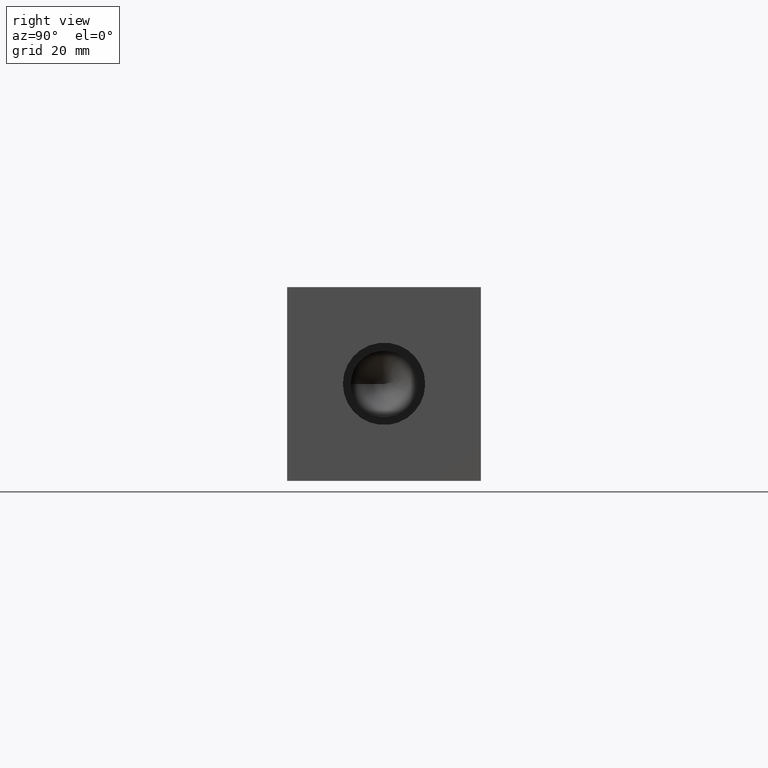
[diagram: clean part render]
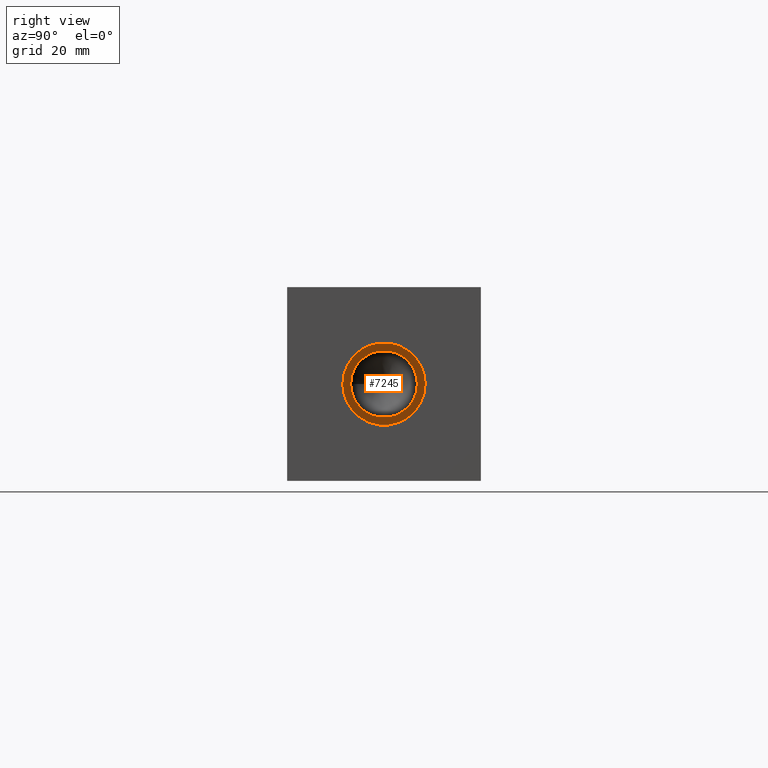
[diagram: same view with one face highlighted and labeled with its STEP entity id]
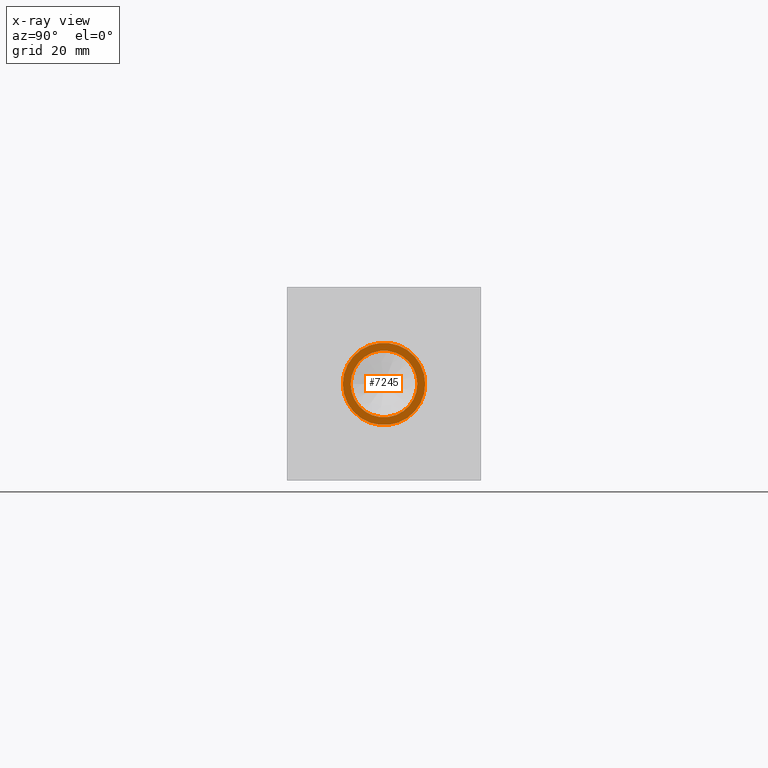
[diagram: x-ray of the same camera — body ghosted, the highlighted face saturated]
A machine part, right view. The second image highlights one B-rep face of the part: STEP entity #7245.
The next image is the same camera in x-ray: the body ghosted, the highlighted face saturated — about 0% of this face is hidden behind the body in this view.
In plain terms, the highlighted planar face has unit normal (1, 0, 0).
Its self-contained STEP definition (entity closure, byte-faithful):
#87=CIRCLE('',#7551,10.795);
#88=CIRCLE('',#7552,10.795);
#89=CIRCLE('',#7553,8.7376);
#489=FACE_BOUND('',#1246,.T.);
#840=FACE_OUTER_BOUND('',#1245,.T.);
#1245=EDGE_LOOP('',(#6196,#6197));
#1246=EDGE_LOOP('',(#6198));
#3327=VERTEX_POINT('',#12319);
#3328=VERTEX_POINT('',#12320);
#3329=VERTEX_POINT('',#12323);
#4300=EDGE_CURVE('',#3327,#3328,#87,.T.);
#4301=EDGE_CURVE('',#3328,#3327,#88,.T.);
#4302=EDGE_CURVE('',#3329,#3329,#89,.T.);
#6196=ORIENTED_EDGE('',*,*,#4300,.T.);
#6197=ORIENTED_EDGE('',*,*,#4301,.T.);
#6198=ORIENTED_EDGE('',*,*,#4302,.F.);
#6586=PLANE('',#7550);
#7245=ADVANCED_FACE('',(#840,#489),#6586,.T.);
#7550=AXIS2_PLACEMENT_3D('',#12318,#8817,#8818);
#7551=AXIS2_PLACEMENT_3D('',#12321,#8819,#8820);
#7552=AXIS2_PLACEMENT_3D('',#12322,#8821,#8822);
#7553=AXIS2_PLACEMENT_3D('',#12324,#8823,#8824);
#8817=DIRECTION('center_axis',(1.,0.,0.));
#8818=DIRECTION('ref_axis',(0.,1.,0.));
#8819=DIRECTION('center_axis',(1.,0.,0.));
#8820=DIRECTION('ref_axis',(0.,1.,0.));
#8821=DIRECTION('center_axis',(1.,0.,0.));
#8822=DIRECTION('ref_axis',(0.,1.,0.));
#8823=DIRECTION('center_axis',(1.,0.,0.));
#8824=DIRECTION('ref_axis',(0.,1.,0.));
#12318=CARTESIAN_POINT('Origin',(162.433,25.4,25.4));
#12319=CARTESIAN_POINT('',(162.433,36.195,25.4));
#12320=CARTESIAN_POINT('',(162.433,14.605,25.4));
#12321=CARTESIAN_POINT('Origin',(162.433,25.4,25.4));
#12322=CARTESIAN_POINT('Origin',(162.433,25.4,25.4));
#12323=CARTESIAN_POINT('',(162.433,16.6624,25.4));
#12324=CARTESIAN_POINT('Origin',(162.433,25.4,25.4));